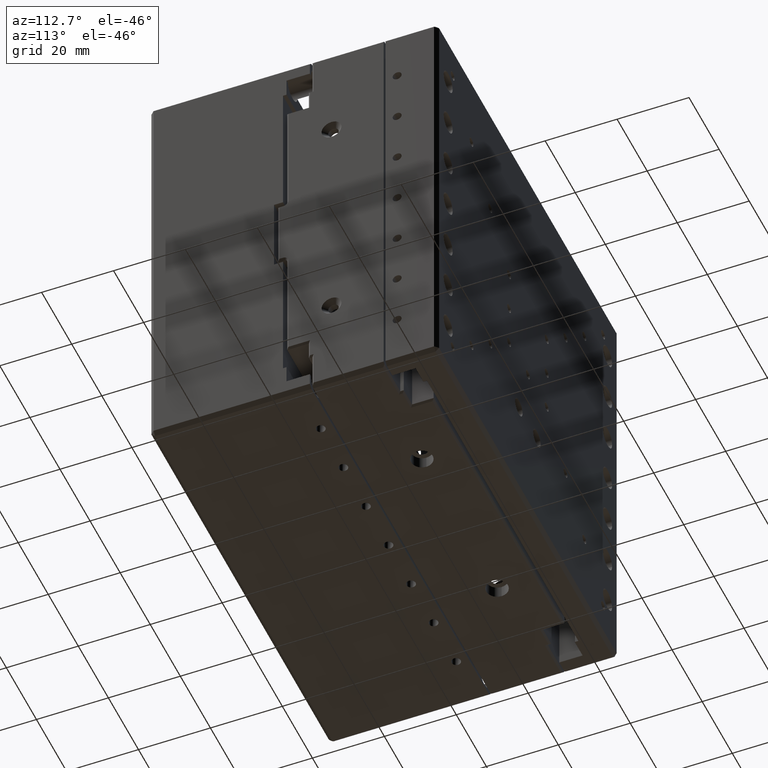
[diagram: clean part render]
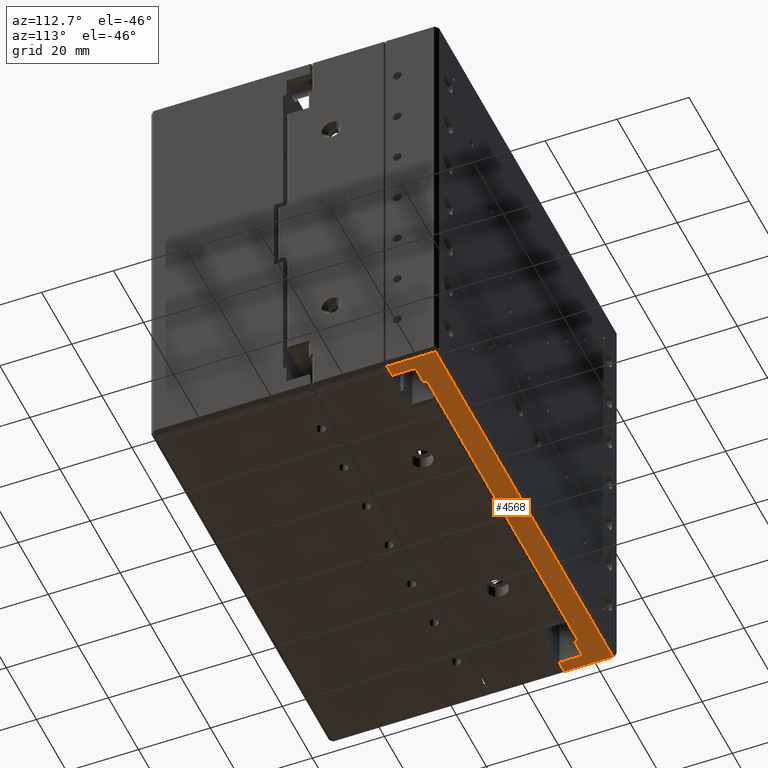
[diagram: same view with one face highlighted and labeled with its STEP entity id]
A machine part, auxiliary view. The second image highlights one B-rep face of the part: STEP entity #4568.
In plain terms, the highlighted planar face has unit normal (0, -0, 1).
Its self-contained STEP definition (entity closure, byte-faithful):
#248 = VECTOR ( 'NONE', #2619, 1000.000000000000000 ) ;
#626 = CARTESIAN_POINT ( 'NONE',  ( 50.29999999999999700, 17.00000000000004300, -60.00000000000005000 ) ) ;
#869 = CARTESIAN_POINT ( 'NONE',  ( -59.00000000000001400, 24.00000000000002100, -60.00000000000000000 ) ) ;
#1141 = CARTESIAN_POINT ( 'NONE',  ( 55.50000000000000000, 10.50000000000004300, -60.00000000000006400 ) ) ;
#1177 = AXIS2_PLACEMENT_3D ( 'NONE', #18126, #19786, #4770 ) ;
#1182 = CARTESIAN_POINT ( 'NONE',  ( -55.50000000000002100, 17.00000000000002100, -60.00000000000002800 ) ) ;
#1307 = LINE ( 'NONE', #14517, #8542 ) ;
#1388 = VECTOR ( 'NONE', #15428, 1000.000000000000000 ) ;
#1611 = VECTOR ( 'NONE', #19532, 1000.000000000000000 ) ;
#1728 = VERTEX_POINT ( 'NONE', #14287 ) ;
#1908 = LINE ( 'NONE', #15577, #1388 ) ;
#2271 = CARTESIAN_POINT ( 'NONE',  ( -55.50000000000002100, 17.00000000000002100, -60.00000000000002800 ) ) ;
#2619 = DIRECTION ( 'NONE',  ( 1.890109125863145400E-016, -1.000000000000000000, -1.650805674533678300E-016 ) ) ;
#2815 = LINE ( 'NONE', #4325, #11323 ) ;
#2827 = CARTESIAN_POINT ( 'NONE',  ( 55.49999999999999300, 17.00000000000004300, -60.00000000000006400 ) ) ;
#2901 = VECTOR ( 'NONE', #9774, 1000.000000000000000 ) ;
#3180 = EDGE_CURVE ( 'NONE', #1728, #17425, #1307, .T. ) ;
#3831 = LINE ( 'NONE', #20590, #6142 ) ;
#4261 = CARTESIAN_POINT ( 'NONE',  ( 58.99999999999997900, 24.00000000000004300, -60.00000000000004300 ) ) ;
#4292 = DIRECTION ( 'NONE',  ( 1.000000000000000000, 1.890109125863145900E-016, -3.330669073875468100E-016 ) ) ;
#4325 = CARTESIAN_POINT ( 'NONE',  ( 55.49999999999999300, 17.00000000000004300, -60.00000000000006400 ) ) ;
#4568 = ADVANCED_FACE ( 'NONE', ( #8127 ), #13197, .F. ) ;
#4595 = CARTESIAN_POINT ( 'NONE',  ( 50.29999999999999700, 18.00000000000003900, -60.00000000000005000 ) ) ;
#4762 = EDGE_CURVE ( 'NONE', #14236, #12268, #1908, .T. ) ;
#4770 = DIRECTION ( 'NONE',  ( -1.000000000000000000, -1.890109125863145900E-016, 3.330669073875468100E-016 ) ) ;
#5441 = LINE ( 'NONE', #19881, #15248 ) ;
#5538 = ORIENTED_EDGE ( 'NONE', *, *, #17504, .T. ) ;
#5807 = CARTESIAN_POINT ( 'NONE',  ( -50.30000000000002600, 17.00000000000002100, -60.00000000000002100 ) ) ;
#6142 = VECTOR ( 'NONE', #4292, 1000.000000000000000 ) ;
#6371 = CARTESIAN_POINT ( 'NONE',  ( 58.99999999999998600, 10.50000000000004300, -60.00000000000004300 ) ) ;
#6725 = DIRECTION ( 'NONE',  ( 1.890109125863145400E-016, -1.000000000000000000, -1.650805674533678300E-016 ) ) ;
#7068 = EDGE_LOOP ( 'NONE', ( #8217, #13532, #5538, #18490, #9845, #8427, #9713, #12509, #10215, #11375, #21145, #16168 ) ) ;
#7276 = CARTESIAN_POINT ( 'NONE',  ( 55.49999999999999300, 17.00000000000004300, -60.00000000000006400 ) ) ;
#7341 = VERTEX_POINT ( 'NONE', #869 ) ;
#7385 = EDGE_CURVE ( 'NONE', #12730, #12447, #21455, .T. ) ;
#7505 = CARTESIAN_POINT ( 'NONE',  ( -55.50000000000001400, 10.50000000000002100, -60.00000000000002800 ) ) ;
#7827 = VECTOR ( 'NONE', #9562, 1000.000000000000000 ) ;
#8127 = FACE_OUTER_BOUND ( 'NONE', #7068, .T. ) ;
#8175 = CARTESIAN_POINT ( 'NONE',  ( 59.99999999999998600, 10.50000000000004400, -60.00000000000004300 ) ) ;
#8217 = ORIENTED_EDGE ( 'NONE', *, *, #4762, .F. ) ;
#8427 = ORIENTED_EDGE ( 'NONE', *, *, #7385, .F. ) ;
#8506 = LINE ( 'NONE', #19087, #248 ) ;
#8542 = VECTOR ( 'NONE', #16115, 1000.000000000000000 ) ;
#9107 = LINE ( 'NONE', #1182, #7827 ) ;
#9118 = EDGE_CURVE ( 'NONE', #11892, #12268, #9107, .T. ) ;
#9228 = EDGE_CURVE ( 'NONE', #12447, #13720, #11431, .T. ) ;
#9254 = DIRECTION ( 'NONE',  ( 1.000000000000000000, 1.890109125863145900E-016, -3.330669073875468100E-016 ) ) ;
#9285 = LINE ( 'NONE', #18001, #10329 ) ;
#9307 = EDGE_CURVE ( 'NONE', #14236, #7341, #10918, .T. ) ;
#9562 = DIRECTION ( 'NONE',  ( 1.890109125863145700E-016, -1.000000000000000000, -1.650805674533678300E-016 ) ) ;
#9713 = ORIENTED_EDGE ( 'NONE', *, *, #14676, .F. ) ;
#9774 = DIRECTION ( 'NONE',  ( -1.890109125863145400E-016, 1.000000000000000000, 1.650805674533678300E-016 ) ) ;
#9845 = ORIENTED_EDGE ( 'NONE', *, *, #9228, .F. ) ;
#10215 = ORIENTED_EDGE ( 'NONE', *, *, #18179, .F. ) ;
#10329 = VECTOR ( 'NONE', #18140, 1000.000000000000000 ) ;
#10743 = VERTEX_POINT ( 'NONE', #4261 ) ;
#10918 = LINE ( 'NONE', #11363, #2901 ) ;
#11272 = DIRECTION ( 'NONE',  ( 1.890109125863145700E-016, -1.000000000000000000, -1.650805674533678300E-016 ) ) ;
#11323 = VECTOR ( 'NONE', #19135, 1000.000000000000000 ) ;
#11363 = CARTESIAN_POINT ( 'NONE',  ( -59.00000000000001400, 10.50000000000002100, -60.00000000000000000 ) ) ;
#11375 = ORIENTED_EDGE ( 'NONE', *, *, #3180, .T. ) ;
#11431 = LINE ( 'NONE', #8175, #1611 ) ;
#11616 = VECTOR ( 'NONE', #11272, 1000.000000000000000 ) ;
#11892 = VERTEX_POINT ( 'NONE', #2271 ) ;
#12268 = VERTEX_POINT ( 'NONE', #7505 ) ;
#12447 = VERTEX_POINT ( 'NONE', #1141 ) ;
#12509 = ORIENTED_EDGE ( 'NONE', *, *, #14143, .F. ) ;
#12730 = VERTEX_POINT ( 'NONE', #7276 ) ;
#12921 = CARTESIAN_POINT ( 'NONE',  ( -59.00000000000001400, 10.50000000000002100, -60.00000000000000000 ) ) ;
#13197 = PLANE ( 'NONE',  #1177 ) ;
#13532 = ORIENTED_EDGE ( 'NONE', *, *, #9307, .T. ) ;
#13720 = VERTEX_POINT ( 'NONE', #6371 ) ;
#14143 = EDGE_CURVE ( 'NONE', #18343, #14574, #8506, .T. ) ;
#14236 = VERTEX_POINT ( 'NONE', #12921 ) ;
#14266 = EDGE_CURVE ( 'NONE', #11892, #17425, #9285, .T. ) ;
#14287 = CARTESIAN_POINT ( 'NONE',  ( -50.30000000000002600, 18.00000000000002100, -60.00000000000002100 ) ) ;
#14517 = CARTESIAN_POINT ( 'NONE',  ( -50.30000000000002600, 18.00000000000002100, -60.00000000000002100 ) ) ;
#14574 = VERTEX_POINT ( 'NONE', #626 ) ;
#14676 = EDGE_CURVE ( 'NONE', #14574, #12730, #2815, .T. ) ;
#14877 = VECTOR ( 'NONE', #9254, 1000.000000000000000 ) ;
#15248 = VECTOR ( 'NONE', #6725, 1000.000000000000000 ) ;
#15428 = DIRECTION ( 'NONE',  ( 1.000000000000000000, 1.890109125863145900E-016, -3.330669073875468100E-016 ) ) ;
#15577 = CARTESIAN_POINT ( 'NONE',  ( 59.99999999999998600, 10.50000000000004400, -60.00000000000004300 ) ) ;
#16115 = DIRECTION ( 'NONE',  ( 1.890109125863145400E-016, -1.000000000000000000, -1.650805674533678300E-016 ) ) ;
#16168 = ORIENTED_EDGE ( 'NONE', *, *, #9118, .T. ) ;
#16796 = CARTESIAN_POINT ( 'NONE',  ( 50.29999999999999700, 18.00000000000003900, -60.00000000000005000 ) ) ;
#17196 = LINE ( 'NONE', #16796, #14877 ) ;
#17425 = VERTEX_POINT ( 'NONE', #5807 ) ;
#17504 = EDGE_CURVE ( 'NONE', #7341, #10743, #3831, .T. ) ;
#18001 = CARTESIAN_POINT ( 'NONE',  ( 55.49999999999999300, 17.00000000000004300, -60.00000000000006400 ) ) ;
#18126 = CARTESIAN_POINT ( 'NONE',  ( 59.99999999999998600, 10.50000000000004400, -60.00000000000004300 ) ) ;
#18140 = DIRECTION ( 'NONE',  ( 1.000000000000000000, 1.890109125863145900E-016, -3.330669073875468100E-016 ) ) ;
#18179 = EDGE_CURVE ( 'NONE', #1728, #18343, #17196, .T. ) ;
#18343 = VERTEX_POINT ( 'NONE', #4595 ) ;
#18490 = ORIENTED_EDGE ( 'NONE', *, *, #19389, .T. ) ;
#19087 = CARTESIAN_POINT ( 'NONE',  ( 50.29999999999999700, 18.00000000000003900, -60.00000000000005000 ) ) ;
#19135 = DIRECTION ( 'NONE',  ( 1.000000000000000000, 1.890109125863145900E-016, -3.330669073875468100E-016 ) ) ;
#19389 = EDGE_CURVE ( 'NONE', #10743, #13720, #5441, .T. ) ;
#19532 = DIRECTION ( 'NONE',  ( 1.000000000000000000, 1.890109125863145900E-016, -3.330669073875468100E-016 ) ) ;
#19786 = DIRECTION ( 'NONE',  ( 3.330669073875468600E-016, -1.650805674533677300E-016, 1.000000000000000000 ) ) ;
#19881 = CARTESIAN_POINT ( 'NONE',  ( 58.99999999999998600, 10.50000000000004300, -60.00000000000004300 ) ) ;
#20590 = CARTESIAN_POINT ( 'NONE',  ( 59.99999999999997900, 24.00000000000004300, -60.00000000000004300 ) ) ;
#21145 = ORIENTED_EDGE ( 'NONE', *, *, #14266, .F. ) ;
#21455 = LINE ( 'NONE', #2827, #11616 ) ;